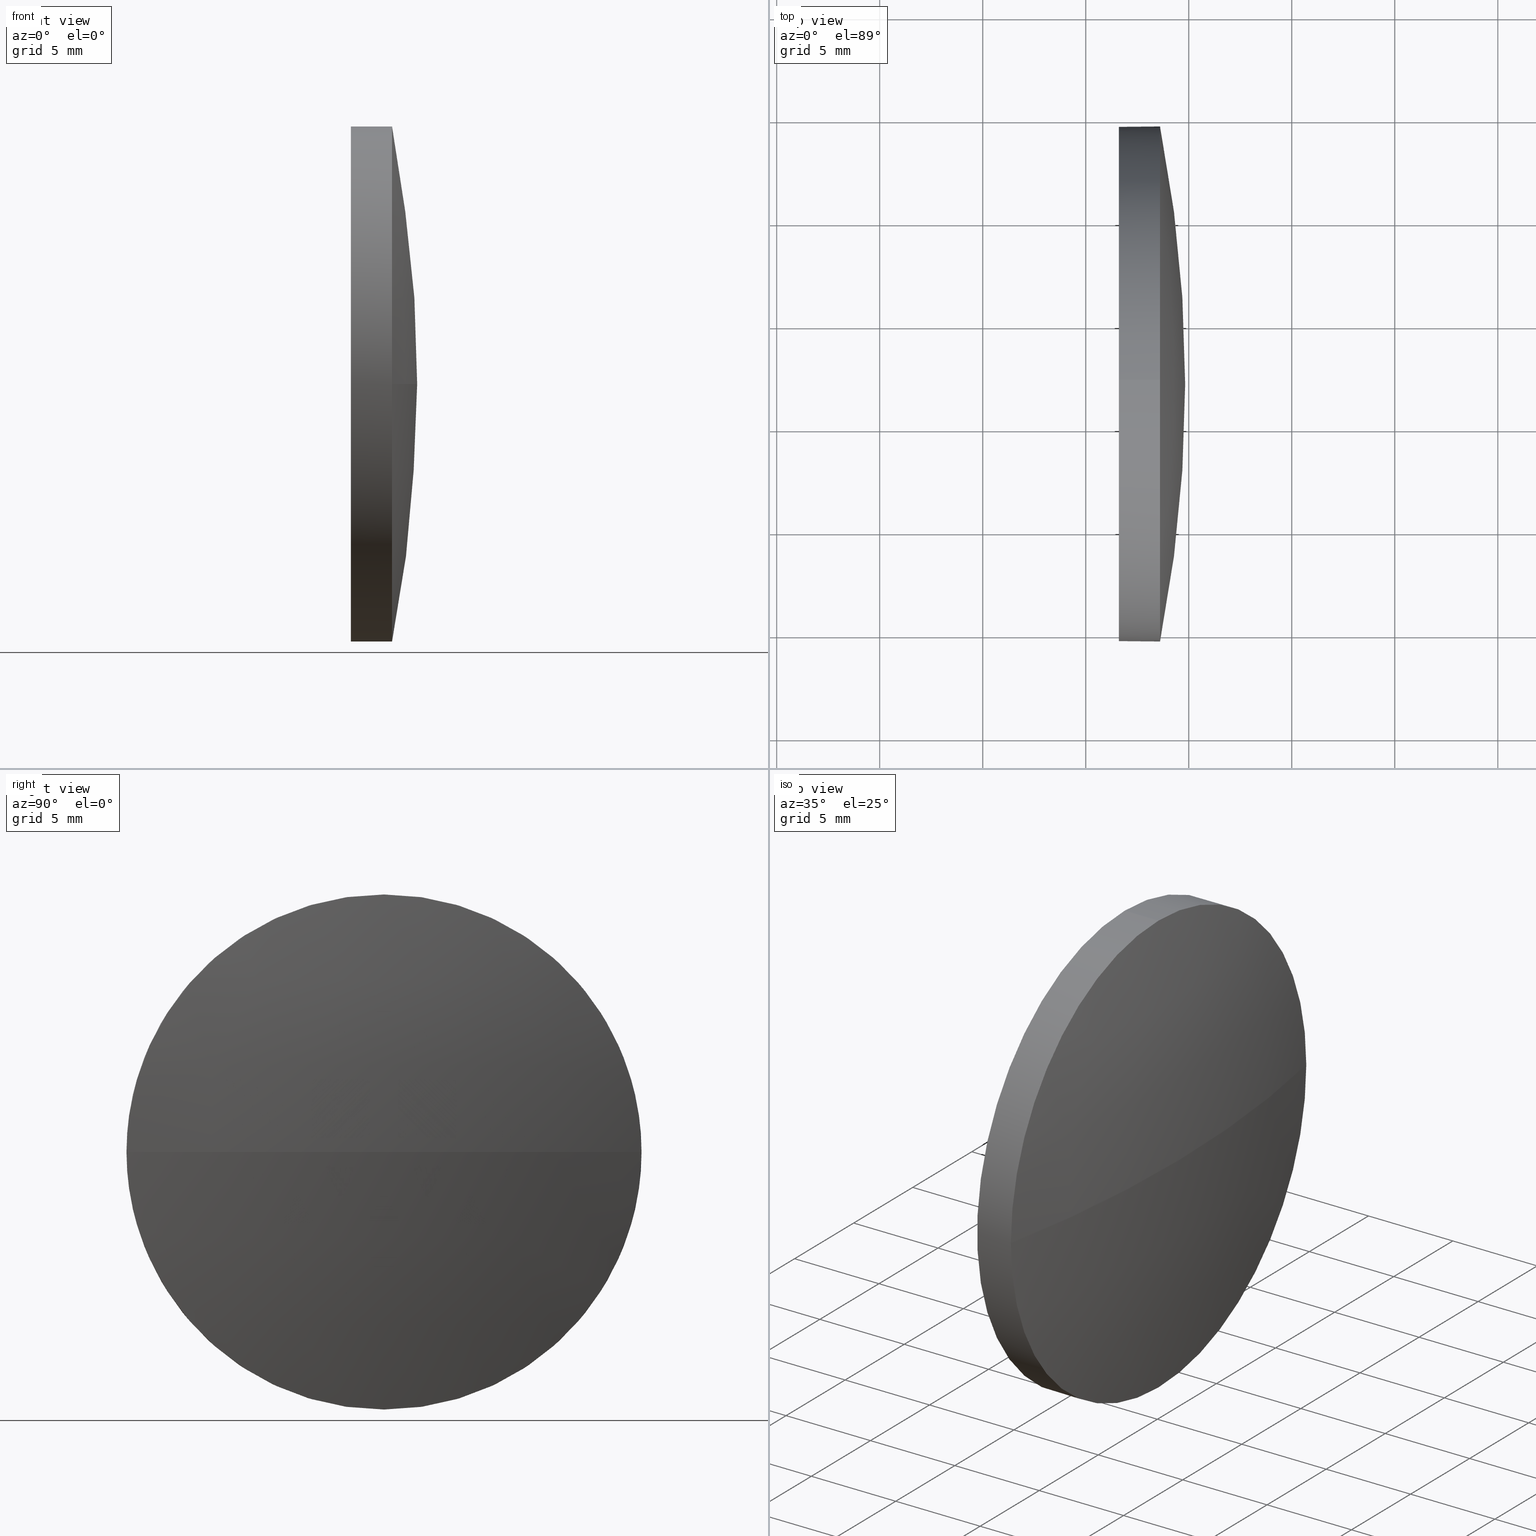
[diagram: canonical four-view strip — front | top / right | iso, engineering-drawing reading convention]
A machine part, canonical four-view strip (front | top / right | iso — engineering-drawing reading convention). The complete STEP part file that produces these views, byte-faithful:
ISO-10303-21;
HEADER;
FILE_DESCRIPTION (( 'STEP AP214' ),
    '1' );
FILE_NAME ('100045.STEP',
    '2019-04-29T08:33:43',
    ( '' ),
    ( '' ),
    'SwSTEP 2.0',
    'SolidWorks 2016',
    '' );
FILE_SCHEMA (( 'AUTOMOTIVE_DESIGN' ));
ENDSEC;

DATA;
#1 = CYLINDRICAL_SURFACE ( 'NONE', #61, 12.50000000000001100 ) ;
#2 = ADVANCED_FACE ( 'NONE', ( #181 ), #1, .T. ) ;
#3 = ORIENTED_EDGE ( 'NONE', *, *, #156, .F. ) ;
#4 =( LENGTH_UNIT ( ) NAMED_UNIT ( * ) SI_UNIT ( .MILLI., .METRE. ) );
#5 = CARTESIAN_POINT ( 'NONE',  ( 448.6061647457008200, 82.09384113862540700, 0.0000000000000000000 ) ) ;
#6 = DIRECTION ( 'NONE',  ( -1.000000000000000000, -0.0000000000000000000, -0.0000000000000000000 ) ) ;
#7 = CARTESIAN_POINT ( 'NONE',  ( 446.6061647457008200, 82.09384113862540700, -12.50000000000001100 ) ) ;
#8 = ORIENTED_EDGE ( 'NONE', *, *, #147, .F. ) ;
#9 = SPHERICAL_SURFACE ( 'NONE', #162, 64.64688524590201300 ) ;
#10 = SURFACE_STYLE_FILL_AREA ( #85 ) ;
#11 = CARTESIAN_POINT ( 'NONE',  ( 446.6061647457008200, 82.09384113862540700, 0.0000000000000000000 ) ) ;
#12 = FACE_OUTER_BOUND ( 'NONE', #30, .T. ) ;
#13 = DIRECTION ( 'NONE',  ( -1.000000000000000000, -0.0000000000000000000, -0.0000000000000000000 ) ) ;
#14 = AXIS2_PLACEMENT_3D ( 'NONE', #91, #6, #167 ) ;
#15 = UNCERTAINTY_MEASURE_WITH_UNIT (LENGTH_MEASURE( 1.000000000000000100E-005 ), #131, 'distance_accuracy_value', 'NONE');
#16 = AXIS2_PLACEMENT_3D ( 'NONE', #113, #66, #117 ) ;
#17 = ADVANCED_FACE ( 'NONE', ( #152 ), #157, .T. ) ;
#18 = DIRECTION ( 'NONE',  ( 0.0000000000000000000, 0.0000000000000000000, 1.000000000000000000 ) ) ;
#19 = AXIS2_PLACEMENT_3D ( 'NONE', #138, #47, #153 ) ;
#20 = CIRCLE ( 'NONE', #133, 64.64688524590202700 ) ;
#21 = DIRECTION ( 'NONE',  ( -0.0000000000000000000, 0.0000000000000000000, -1.000000000000000000 ) ) ;
#22 = AXIS2_PLACEMENT_3D ( 'NONE', #25, #43, #28 ) ;
#23 = DIRECTION ( 'NONE',  ( -1.000000000000000000, -0.0000000000000000000, -0.0000000000000000000 ) ) ;
#24 = PRODUCT ( '100045', '100045', '', ( #143 ) ) ;
#25 = CARTESIAN_POINT ( 'NONE',  ( 448.6061647457008200, 82.09384113862540700, 0.0000000000000000000 ) ) ;
#26 = CARTESIAN_POINT ( 'NONE',  ( 385.1792794997987800, 82.09384113862537900, 0.0000000000000000000 ) ) ;
#27 = SURFACE_STYLE_USAGE ( .BOTH. , #114 ) ;
#28 = DIRECTION ( 'NONE',  ( 0.0000000000000000000, 0.0000000000000000000, 1.000000000000000000 ) ) ;
#29 = CIRCLE ( 'NONE', #130, 12.50000000000001100 ) ;
#30 = EDGE_LOOP ( 'NONE', ( #164, #74, #118, #8 ) ) ;
#31 = EDGE_LOOP ( 'NONE', ( #100, #160, #175, #144, #109 ) ) ;
#32 = FACE_OUTER_BOUND ( 'NONE', #121, .T. ) ;
#33 = AXIS2_PLACEMENT_3D ( 'NONE', #11, #57, #55 ) ;
#34 = VECTOR ( 'NONE', #13, 1000.000000000000000 ) ;
#35 = UNCERTAINTY_MEASURE_WITH_UNIT (LENGTH_MEASURE( 1.000000000000000100E-005 ), #169, 'distance_accuracy_value', 'NONE');
#36 = CARTESIAN_POINT ( 'NONE',  ( 448.6061647457008200, 82.09384113862540700, 12.50000000000001100 ) ) ;
#37 = APPLICATION_CONTEXT ( 'automotive_design' ) ;
#38 = VERTEX_POINT ( 'NONE', #106 ) ;
#39 = CARTESIAN_POINT ( 'NONE',  ( 441.8641335038109300, 82.09384113862540700, 0.0000000000000000000 ) ) ;
#40 = ORIENTED_EDGE ( 'NONE', *, *, #147, .T. ) ;
#41 = VECTOR ( 'NONE', #126, 1000.000000000000000 ) ;
#42 = EDGE_CURVE ( 'NONE', #141, #148, #78, .T. ) ;
#43 = DIRECTION ( 'NONE',  ( -1.000000000000000000, -0.0000000000000000000, -0.0000000000000000000 ) ) ;
#44 = DIRECTION ( 'NONE',  ( 0.0000000000000000000, 0.0000000000000000000, -1.000000000000000000 ) ) ;
#45 = ORIENTED_EDGE ( 'NONE', *, *, #53, .T. ) ;
#46 =( NAMED_UNIT ( * ) PLANE_ANGLE_UNIT ( ) SI_UNIT ( $, .RADIAN. ) );
#47 = DIRECTION ( 'NONE',  ( -0.0000000000000000000, 0.0000000000000000000, 1.000000000000000000 ) ) ;
#48 = STYLED_ITEM ( 'NONE', ( #92 ), #135 ) ;
#49 = ORIENTED_EDGE ( 'NONE', *, *, #179, .T. ) ;
#50 = FACE_OUTER_BOUND ( 'NONE', #182, .T. ) ;
#51 = FILL_AREA_STYLE_COLOUR ( '', #60 ) ;
#52 = SPHERICAL_SURFACE ( 'NONE', #99, 64.64688524590201300 ) ;
#53 = EDGE_CURVE ( 'NONE', #155, #127, #104, .T. ) ;
#54 = CARTESIAN_POINT ( 'NONE',  ( 441.8641335038109300, 82.09384113862540700, -12.50000000000001100 ) ) ;
#55 = DIRECTION ( 'NONE',  ( 0.0000000000000000000, 0.0000000000000000000, 1.000000000000000000 ) ) ;
#56 = APPLICATION_CONTEXT ( 'automotive_design' ) ;
#57 = DIRECTION ( 'NONE',  ( -1.000000000000000000, -0.0000000000000000000, -0.0000000000000000000 ) ) ;
#58 = PRESENTATION_LAYER_ASSIGNMENT (  '', '', ( #65 ) ) ;
#59 = SHAPE_DEFINITION_REPRESENTATION ( #88, #98 ) ;
#60 = COLOUR_RGB ( '',1.000000000000000000, 1.000000000000000000, 1.000000000000000000 ) ;
#61 = AXIS2_PLACEMENT_3D ( 'NONE', #39, #176, #79 ) ;
#62 = ADVANCED_FACE ( 'NONE', ( #32 ), #9, .T. ) ;
#63 = DIRECTION ( 'NONE',  ( 1.000000000000000000, 0.0000000000000000000, 0.0000000000000000000 ) ) ;
#64 = DIRECTION ( 'NONE',  ( 0.0000000000000000000, 1.000000000000000000, 0.0000000000000000000 ) ) ;
#65 = STYLED_ITEM ( 'NONE', ( #177 ), #98 ) ;
#66 = DIRECTION ( 'NONE',  ( -1.000000000000000000, -0.0000000000000000000, -0.0000000000000000000 ) ) ;
#67 = DIRECTION ( 'NONE',  ( 1.000000000000000000, 0.0000000000000000000, 0.0000000000000000000 ) ) ;
#68 = ORIENTED_EDGE ( 'NONE', *, *, #165, .T. ) ;
#69 = DIRECTION ( 'NONE',  ( -1.000000000000000000, -0.0000000000000000000, -0.0000000000000000000 ) ) ;
#70 = CARTESIAN_POINT ( 'NONE',  ( 385.1792794997987800, 82.09384113862537900, 0.0000000000000000000 ) ) ;
#71 = DIRECTION ( 'NONE',  ( 0.0000000000000000000, 0.0000000000000000000, 1.000000000000000000 ) ) ;
#72 = EDGE_CURVE ( 'NONE', #115, #148, #128, .T. ) ;
#73 = CIRCLE ( 'NONE', #183, 12.50000000000001100 ) ;
#74 = ORIENTED_EDGE ( 'NONE', *, *, #81, .T. ) ;
#75 = ORIENTED_EDGE ( 'NONE', *, *, #165, .F. ) ;
#76 = MECHANICAL_DESIGN_GEOMETRIC_PRESENTATION_REPRESENTATION (  '', ( #65 ), #93 ) ;
#77 = CARTESIAN_POINT ( 'NONE',  ( 449.8261647457007900, 82.09384113862537900, 0.0000000000000000000 ) ) ;
#78 = LINE ( 'NONE', #154, #41 ) ;
#79 = DIRECTION ( 'NONE',  ( 0.0000000000000000000, 0.0000000000000000000, 1.000000000000000000 ) ) ;
#80 = VERTEX_POINT ( 'NONE', #86 ) ;
#81 = EDGE_CURVE ( 'NONE', #155, #38, #20, .T. ) ;
#82 =( NAMED_UNIT ( * ) PLANE_ANGLE_UNIT ( ) SI_UNIT ( $, .RADIAN. ) );
#83 = DIRECTION ( 'NONE',  ( 0.0000000000000000000, 1.000000000000000000, 1.224646799147353000E-016 ) ) ;
#84 = EDGE_LOOP ( 'NONE', ( #40, #49, #3, #112, #68 ) ) ;
#85 = FILL_AREA_STYLE ('',( #171 ) ) ;
#86 = CARTESIAN_POINT ( 'NONE',  ( 448.6061647457008200, 82.09384113862540700, -12.50000000000001100 ) ) ;
#87 = AXIS2_PLACEMENT_3D ( 'NONE', #184, #69, #71 ) ;
#88 = PRODUCT_DEFINITION_SHAPE ( 'NONE', 'NONE',  #180 ) ;
#89 = SURFACE_STYLE_USAGE ( .BOTH. , #151 ) ;
#90 = AXIS2_PLACEMENT_3D ( 'NONE', #142, #67, #44 ) ;
#91 = CARTESIAN_POINT ( 'NONE',  ( 441.8641335038109300, 82.09384113862540700, 0.0000000000000000000 ) ) ;
#92 = PRESENTATION_STYLE_ASSIGNMENT (( #89 ) ) ;
#93 =( GEOMETRIC_REPRESENTATION_CONTEXT ( 3 ) GLOBAL_UNCERTAINTY_ASSIGNED_CONTEXT ( ( #15 ) ) GLOBAL_UNIT_ASSIGNED_CONTEXT ( ( #131, #46, #146 ) ) REPRESENTATION_CONTEXT ( 'NONE', 'WORKASPACE' ) );
#94 = DIRECTION ( 'NONE',  ( 0.0000000000000000000, 1.000000000000000000, 0.0000000000000000000 ) ) ;
#95 = APPLICATION_PROTOCOL_DEFINITION ( 'draft international standard', 'automotive_design', 1998, #37 ) ;
#96 = ORIENTED_EDGE ( 'NONE', *, *, #72, .T. ) ;
#97 = CARTESIAN_POINT ( 'NONE',  ( 448.6061647457008200, 82.09384113862540700, 0.0000000000000000000 ) ) ;
#98 = ADVANCED_BREP_SHAPE_REPRESENTATION ( '100045', ( #135, #108 ), #173 ) ;
#99 = AXIS2_PLACEMENT_3D ( 'NONE', #26, #163, #94 ) ;
#100 = ORIENTED_EDGE ( 'NONE', *, *, #179, .F. ) ;
#101 = ADVANCED_FACE ( 'NONE', ( #50 ), #159, .F. ) ;
#102 = PRODUCT_RELATED_PRODUCT_CATEGORY ( 'part', '', ( #24 ) ) ;
#103 = DIRECTION ( 'NONE',  ( -1.000000000000000000, -0.0000000000000000000, -0.0000000000000000000 ) ) ;
#104 = CIRCLE ( 'NONE', #19, 64.64688524590201300 ) ;
#105 = COLOUR_RGB ( '',1.000000000000000000, 1.000000000000000000, 1.000000000000000000 ) ;
#106 = CARTESIAN_POINT ( 'NONE',  ( 448.6061647457008200, 69.59384113862536500, -1.530808498934193100E-015 ) ) ;
#107 = CARTESIAN_POINT ( 'NONE',  ( 385.1792794997987800, 82.09384113862537900, 0.0000000000000000000 ) ) ;
#108 = AXIS2_PLACEMENT_3D ( 'NONE', #161, #158, #63 ) ;
#109 = ORIENTED_EDGE ( 'NONE', *, *, #72, .F. ) ;
#110 = LINE ( 'NONE', #54, #34 ) ;
#111 = PRESENTATION_LAYER_ASSIGNMENT (  '', '', ( #48 ) ) ;
#112 = ORIENTED_EDGE ( 'NONE', *, *, #42, .F. ) ;
#113 = CARTESIAN_POINT ( 'NONE',  ( 446.6061647457008200, 82.09384113862540700, 0.0000000000000000000 ) ) ;
#114 = SURFACE_SIDE_STYLE ('',( #10 ) ) ;
#115 = VERTEX_POINT ( 'NONE', #7 ) ;
#116 = PRODUCT_DEFINITION_CONTEXT ( 'detailed design', #56, 'design' ) ;
#117 = DIRECTION ( 'NONE',  ( 0.0000000000000000000, 0.0000000000000000000, 1.000000000000000000 ) ) ;
#118 = ORIENTED_EDGE ( 'NONE', *, *, #174, .F. ) ;
#119 = ORIENTED_EDGE ( 'NONE', *, *, #156, .T. ) ;
#120 = ADVANCED_FACE ( 'NONE', ( #12 ), #52, .T. ) ;
#121 = EDGE_LOOP ( 'NONE', ( #134, #45, #75, #149 ) ) ;
#122 = PRODUCT_DEFINITION_FORMATION_WITH_SPECIFIED_SOURCE ( '�κ�', '', #24, .NOT_KNOWN. ) ;
#123 = MECHANICAL_DESIGN_GEOMETRIC_PRESENTATION_REPRESENTATION (  '', ( #48 ), #139 ) ;
#124 = FILL_AREA_STYLE ('',( #51 ) ) ;
#125 = APPLICATION_PROTOCOL_DEFINITION ( 'draft international standard', 'automotive_design', 1998, #56 ) ;
#126 = DIRECTION ( 'NONE',  ( -1.000000000000000000, -0.0000000000000000000, -0.0000000000000000000 ) ) ;
#127 = VERTEX_POINT ( 'NONE', #145 ) ;
#128 = CIRCLE ( 'NONE', #33, 12.50000000000001100 ) ;
#129 =( NAMED_UNIT ( * ) SI_UNIT ( $, .STERADIAN. ) SOLID_ANGLE_UNIT ( ) );
#130 = AXIS2_PLACEMENT_3D ( 'NONE', #5, #103, #18 ) ;
#131 =( LENGTH_UNIT ( ) NAMED_UNIT ( * ) SI_UNIT ( .MILLI., .METRE. ) );
#132 = DIRECTION ( 'NONE',  ( 0.0000000000000000000, 0.0000000000000000000, 1.000000000000000000 ) ) ;
#133 = AXIS2_PLACEMENT_3D ( 'NONE', #70, #170, #83 ) ;
#134 = ORIENTED_EDGE ( 'NONE', *, *, #81, .F. ) ;
#135 = MANIFOLD_SOLID_BREP ( '��ת1', #178 ) ;
#136 = CARTESIAN_POINT ( 'NONE',  ( 446.6061647457008200, 82.09384113862540700, 12.50000000000001100 ) ) ;
#137 =( NAMED_UNIT ( * ) PLANE_ANGLE_UNIT ( ) SI_UNIT ( $, .RADIAN. ) );
#138 = CARTESIAN_POINT ( 'NONE',  ( 385.1792794997987800, 82.09384113862537900, 0.0000000000000000000 ) ) ;
#139 =( GEOMETRIC_REPRESENTATION_CONTEXT ( 3 ) GLOBAL_UNCERTAINTY_ASSIGNED_CONTEXT ( ( #186 ) ) GLOBAL_UNIT_ASSIGNED_CONTEXT ( ( #4, #137, #166 ) ) REPRESENTATION_CONTEXT ( 'NONE', 'WORKASPACE' ) );
#140 = CIRCLE ( 'NONE', #22, 12.50000000000001100 ) ;
#141 = VERTEX_POINT ( 'NONE', #36 ) ;
#142 = CARTESIAN_POINT ( 'NONE',  ( 446.6061647457008200, 82.09384113862540700, 0.0000000000000000000 ) ) ;
#143 = PRODUCT_CONTEXT ( 'NONE', #37, 'mechanical' ) ;
#144 = ORIENTED_EDGE ( 'NONE', *, *, #42, .T. ) ;
#145 = CARTESIAN_POINT ( 'NONE',  ( 448.6061647457008200, 94.59384113862542200, 0.0000000000000000000 ) ) ;
#146 =( NAMED_UNIT ( * ) SI_UNIT ( $, .STERADIAN. ) SOLID_ANGLE_UNIT ( ) );
#147 = EDGE_CURVE ( 'NONE', #127, #80, #29, .T. ) ;
#148 = VERTEX_POINT ( 'NONE', #136 ) ;
#149 = ORIENTED_EDGE ( 'NONE', *, *, #172, .F. ) ;
#150 = CIRCLE ( 'NONE', #87, 12.50000000000001100 ) ;
#151 = SURFACE_SIDE_STYLE ('',( #168 ) ) ;
#152 = FACE_OUTER_BOUND ( 'NONE', #31, .T. ) ;
#153 = DIRECTION ( 'NONE',  ( 1.000000000000000000, 0.0000000000000000000, 0.0000000000000000000 ) ) ;
#154 = CARTESIAN_POINT ( 'NONE',  ( 441.8641335038109300, 82.09384113862540700, 12.50000000000001100 ) ) ;
#155 = VERTEX_POINT ( 'NONE', #77 ) ;
#156 = EDGE_CURVE ( 'NONE', #148, #115, #185, .T. ) ;
#157 = CYLINDRICAL_SURFACE ( 'NONE', #14, 12.50000000000001100 ) ;
#158 = DIRECTION ( 'NONE',  ( 0.0000000000000000000, 0.0000000000000000000, 1.000000000000000000 ) ) ;
#159 = PLANE ( 'NONE',  #90 ) ;
#160 = ORIENTED_EDGE ( 'NONE', *, *, #174, .T. ) ;
#161 = CARTESIAN_POINT ( 'NONE',  ( 0.0000000000000000000, 0.0000000000000000000, 0.0000000000000000000 ) ) ;
#162 = AXIS2_PLACEMENT_3D ( 'NONE', #107, #21, #64 ) ;
#163 = DIRECTION ( 'NONE',  ( -0.0000000000000000000, 0.0000000000000000000, -1.000000000000000000 ) ) ;
#164 = ORIENTED_EDGE ( 'NONE', *, *, #53, .F. ) ;
#165 = EDGE_CURVE ( 'NONE', #141, #127, #140, .T. ) ;
#166 =( NAMED_UNIT ( * ) SI_UNIT ( $, .STERADIAN. ) SOLID_ANGLE_UNIT ( ) );
#167 = DIRECTION ( 'NONE',  ( 0.0000000000000000000, 0.0000000000000000000, 1.000000000000000000 ) ) ;
#168 = SURFACE_STYLE_FILL_AREA ( #124 ) ;
#169 =( LENGTH_UNIT ( ) NAMED_UNIT ( * ) SI_UNIT ( .MILLI., .METRE. ) );
#170 = DIRECTION ( 'NONE',  ( 0.0000000000000000000, 1.224646799147353200E-016, -1.000000000000000000 ) ) ;
#171 = FILL_AREA_STYLE_COLOUR ( '', #105 ) ;
#172 = EDGE_CURVE ( 'NONE', #38, #141, #73, .T. ) ;
#173 =( GEOMETRIC_REPRESENTATION_CONTEXT ( 3 ) GLOBAL_UNCERTAINTY_ASSIGNED_CONTEXT ( ( #35 ) ) GLOBAL_UNIT_ASSIGNED_CONTEXT ( ( #169, #82, #129 ) ) REPRESENTATION_CONTEXT ( 'NONE', 'WORKASPACE' ) );
#174 = EDGE_CURVE ( 'NONE', #80, #38, #150, .T. ) ;
#175 = ORIENTED_EDGE ( 'NONE', *, *, #172, .T. ) ;
#176 = DIRECTION ( 'NONE',  ( -1.000000000000000000, -0.0000000000000000000, -0.0000000000000000000 ) ) ;
#177 = PRESENTATION_STYLE_ASSIGNMENT (( #27 ) ) ;
#178 = CLOSED_SHELL ( 'NONE', ( #2, #120, #62, #17, #101 ) ) ;
#179 = EDGE_CURVE ( 'NONE', #80, #115, #110, .T. ) ;
#180 = PRODUCT_DEFINITION ( 'δ֪', '', #122, #116 ) ;
#181 = FACE_OUTER_BOUND ( 'NONE', #84, .T. ) ;
#182 = EDGE_LOOP ( 'NONE', ( #119, #96 ) ) ;
#183 = AXIS2_PLACEMENT_3D ( 'NONE', #97, #23, #132 ) ;
#184 = CARTESIAN_POINT ( 'NONE',  ( 448.6061647457008200, 82.09384113862540700, 0.0000000000000000000 ) ) ;
#185 = CIRCLE ( 'NONE', #16, 12.50000000000001100 ) ;
#186 = UNCERTAINTY_MEASURE_WITH_UNIT (LENGTH_MEASURE( 1.000000000000000100E-005 ), #4, 'distance_accuracy_value', 'NONE');
ENDSEC;
END-ISO-10303-21;
